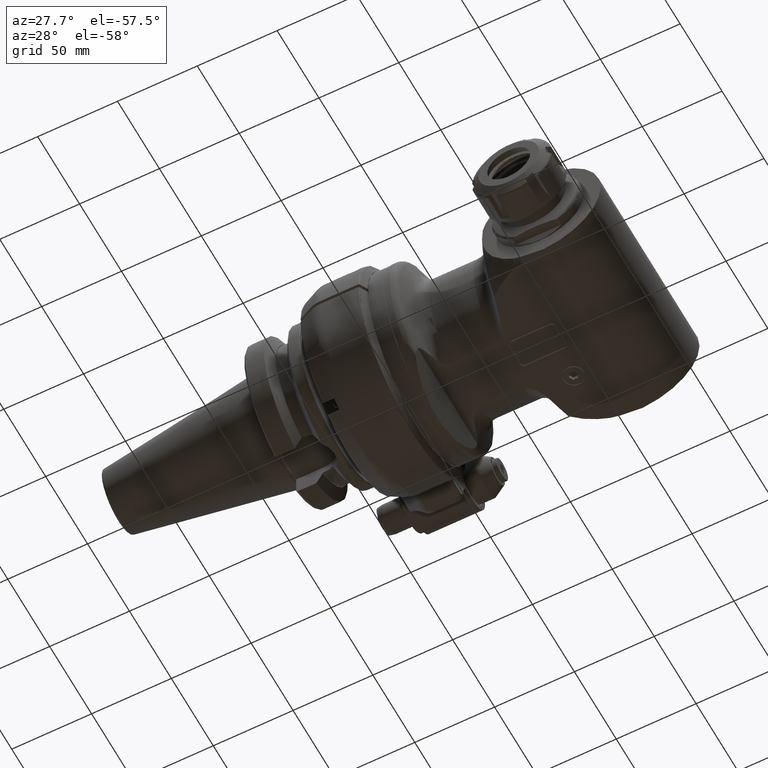
[diagram: clean part render]
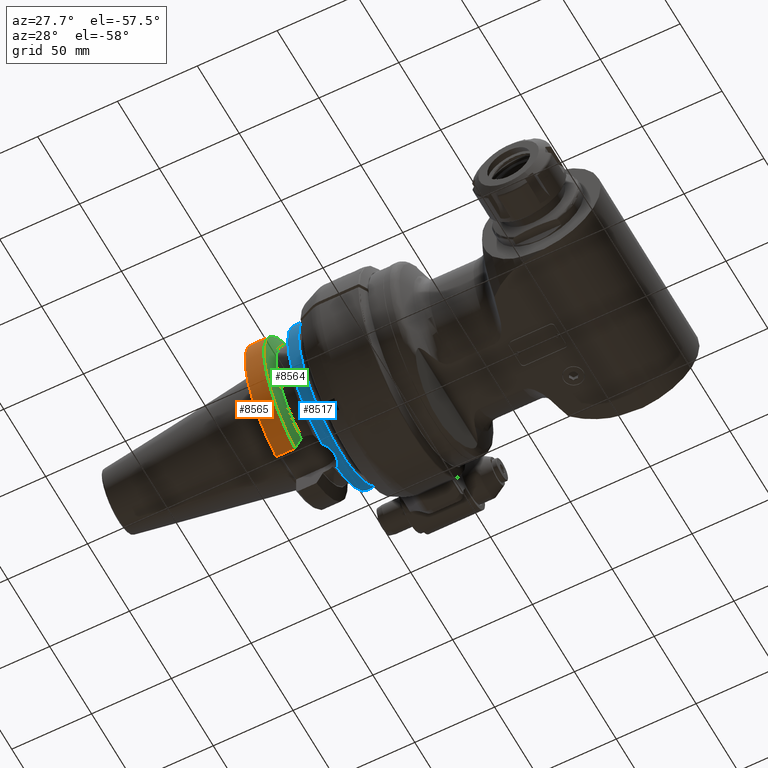
[diagram: same view with three faces highlighted in distinct colors, each labeled with its STEP entity id]
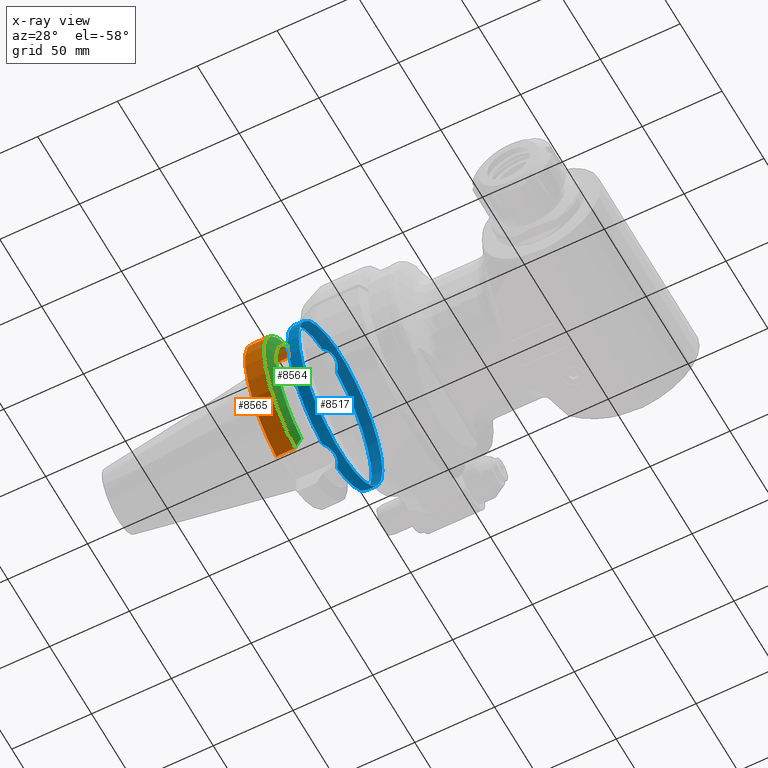
[diagram: x-ray of the same camera — body ghosted, the three highlighted faces saturated]
A machine part, auxiliary view with three faces highlighted in distinct colors.
The next image is the same camera in x-ray (body ghosted, the three faces saturated) — at least one of them is partly hidden behind the body in this view.
Their STEP definitions:

[orange] entity #8565 — the highlighted cylindrical surface (partial cylindrical patch) has radius 50 mm, axis along (1, 0, 0).
#350=CYLINDRICAL_SURFACE('',#9257,50.);
#668=CIRCLE('',#9256,50.);
#669=CIRCLE('',#9258,50.);
#1115=FACE_OUTER_BOUND('',#1649,.T.);
#1649=EDGE_LOOP('',(#6226,#6227,#6228,#6229));
#2361=LINE('',#13992,#2909);
#2390=LINE('',#14163,#2938);
#2909=VECTOR('',#10466,10.);
#2938=VECTOR('',#10607,10.);
#3537=VERTEX_POINT('',#13989);
#3538=VERTEX_POINT('',#13991);
#3582=VERTEX_POINT('',#14158);
#3583=VERTEX_POINT('',#14162);
#4498=EDGE_CURVE('',#3538,#3537,#2361,.T.);
#4565=EDGE_CURVE('',#3583,#3582,#2390,.T.);
#4570=EDGE_CURVE('',#3538,#3582,#668,.T.);
#4571=EDGE_CURVE('',#3583,#3537,#669,.T.);
#6226=ORIENTED_EDGE('',*,*,#4571,.F.);
#6227=ORIENTED_EDGE('',*,*,#4565,.T.);
#6228=ORIENTED_EDGE('',*,*,#4570,.F.);
#6229=ORIENTED_EDGE('',*,*,#4498,.T.);
#8565=ADVANCED_FACE('',(#1115),#350,.T.);
#9256=AXIS2_PLACEMENT_3D('',#14170,#10619,#10620);
#9257=AXIS2_PLACEMENT_3D('',#14171,#10621,#10622);
#9258=AXIS2_PLACEMENT_3D('',#14172,#10623,#10624);
#10466=DIRECTION('',(-1.,0.,0.));
#10607=DIRECTION('',(1.,0.,0.));
#10619=DIRECTION('center_axis',(1.,0.,0.));
#10620=DIRECTION('ref_axis',(0.,-0.257000000000005,0.966411403078419));
#10621=DIRECTION('center_axis',(1.,0.,0.));
#10622=DIRECTION('ref_axis',(0.,-1.,0.));
#10623=DIRECTION('center_axis',(-1.,0.,0.));
#10624=DIRECTION('ref_axis',(0.,-1.,0.));
#13989=CARTESIAN_POINT('',(-76.000000000001,-12.85,48.32057015392));
#13991=CARTESIAN_POINT('',(-64.3000686724345,-12.8499999998479,48.3205701542926));
#13992=CARTESIAN_POINT('',(-63.52764574358,-12.85,48.320570153921));
#14158=CARTESIAN_POINT('',(-64.3000686724346,-12.8499999998479,-48.3205701542926));
#14162=CARTESIAN_POINT('',(-76.00000000001,-12.85,-48.32057015392));
#14163=CARTESIAN_POINT('',(-63.52764574358,-12.85,-48.320570153921));
#14170=CARTESIAN_POINT('Origin',(-64.30006867191,0.,0.));
#14171=CARTESIAN_POINT('Origin',(-63.52764574358,0.,0.));
#14172=CARTESIAN_POINT('Origin',(-76.,0.,0.));

[blue] entity #8517 — the highlighted cylindrical surface (bore or boss wall) has radius 50 mm, axis along (1, 0, 0).
#212=B_SPLINE_CURVE_WITH_KNOTS('',3,(#13357,#13358,#13359,#13360,#13361,
#13362,#13363,#13364,#13365,#13366,#13367,#13368,#13369,#13370,#13371,#13372,
#13373,#13374,#13375,#13376,#13377,#13378,#13379,#13380,#13381,#13382,#13383,
#13384,#13385),.UNSPECIFIED.,.F.,.F.,(4,1,1,1,1,1,1,1,1,1,1,1,1,1,1,1,1,
1,1,1,1,1,1,1,1,1,4),(0.,0.01608847298446,0.05668560159406,0.09728477220944,
0.137884892262,0.178486680688,0.2186847770708,0.2588841269408,0.29908328876,
0.3392833254509,0.3794752329734,0.4196676536638,0.459859827133,0.5000521692269,
0.540244476811,0.5804366153278,0.6206290013041,0.6608208736297,0.7010208783887,
0.7412200077304,0.7814193246439,0.8216173874692,0.8622196224041,0.9028201882921,
0.9434198035432,0.9840173761406,1.),.UNSPECIFIED.);
#213=B_SPLINE_CURVE_WITH_KNOTS('',3,(#13389,#13390,#13391,#13392,#13393,
#13394,#13395,#13396,#13397,#13398,#13399,#13400,#13401,#13402,#13403,#13404,
#13405,#13406,#13407,#13408,#13409,#13410,#13411,#13412,#13413,#13414,#13415,
#13416,#13417),.UNSPECIFIED.,.F.,.F.,(4,1,1,1,1,1,1,1,1,1,1,1,1,1,1,1,1,
1,1,1,1,1,1,1,1,1,4),(0.,0.01608847298681,0.05668560159641,0.09728477221178,
0.1378848922644,0.1784866806903,0.2186847770728,0.2588841269425,0.2990832887614,
0.339283325452,0.3794752329743,0.4196676536643,0.4598598271333,0.5000521692269,
0.5402444768113,0.5804366153284,0.620629001305,0.6608208736309,0.7010208783902,
0.7412200077322,0.781419324646,0.8216173874715,0.8622196224064,0.9028201882944,
0.9434198035455,0.984017376143,1.),.UNSPECIFIED.);
#340=CYLINDRICAL_SURFACE('',#9161,50.);
#617=CIRCLE('',#9159,50.);
#618=CIRCLE('',#9160,50.);
#619=CIRCLE('',#9162,50.);
#620=CIRCLE('',#9163,50.);
#621=CIRCLE('',#9164,50.);
#1067=FACE_OUTER_BOUND('',#1596,.T.);
#1596=EDGE_LOOP('',(#5970,#5971,#5972,#5973,#5974,#5975,#5976,#5977,#5978));
#2337=LINE('',#13353,#2885);
#2885=VECTOR('',#10376,50.);
#3492=VERTEX_POINT('',#13346);
#3493=VERTEX_POINT('',#13347);
#3494=VERTEX_POINT('',#13352);
#3495=VERTEX_POINT('',#13354);
#3496=VERTEX_POINT('',#13356);
#3497=VERTEX_POINT('',#13386);
#3498=VERTEX_POINT('',#13388);
#4434=EDGE_CURVE('',#3492,#3493,#617,.T.);
#4436=EDGE_CURVE('',#3493,#3492,#618,.T.);
#4437=EDGE_CURVE('',#3492,#3494,#2337,.T.);
#4438=EDGE_CURVE('',#3495,#3494,#619,.T.);
#4439=EDGE_CURVE('',#3495,#3496,#212,.T.);
#4440=EDGE_CURVE('',#3497,#3496,#620,.T.);
#4441=EDGE_CURVE('',#3497,#3498,#213,.T.);
#4442=EDGE_CURVE('',#3494,#3498,#621,.T.);
#5970=ORIENTED_EDGE('',*,*,#4434,.F.);
#5971=ORIENTED_EDGE('',*,*,#4437,.T.);
#5972=ORIENTED_EDGE('',*,*,#4438,.F.);
#5973=ORIENTED_EDGE('',*,*,#4439,.T.);
#5974=ORIENTED_EDGE('',*,*,#4440,.F.);
#5975=ORIENTED_EDGE('',*,*,#4441,.T.);
#5976=ORIENTED_EDGE('',*,*,#4442,.F.);
#5977=ORIENTED_EDGE('',*,*,#4437,.F.);
#5978=ORIENTED_EDGE('',*,*,#4436,.F.);
#8517=ADVANCED_FACE('',(#1067),#340,.T.);
#9159=AXIS2_PLACEMENT_3D('',#13348,#10369,#10370);
#9160=AXIS2_PLACEMENT_3D('',#13350,#10372,#10373);
#9161=AXIS2_PLACEMENT_3D('',#13351,#10374,#10375);
#9162=AXIS2_PLACEMENT_3D('',#13355,#10377,#10378);
#9163=AXIS2_PLACEMENT_3D('',#13387,#10379,#10380);
#9164=AXIS2_PLACEMENT_3D('',#13418,#10381,#10382);
#10369=DIRECTION('center_axis',(1.,0.,0.));
#10370=DIRECTION('ref_axis',(0.,1.,0.));
#10372=DIRECTION('center_axis',(1.,0.,0.));
#10373=DIRECTION('ref_axis',(0.,1.,0.));
#10374=DIRECTION('center_axis',(1.,0.,0.));
#10375=DIRECTION('ref_axis',(0.,-1.,0.));
#10376=DIRECTION('',(-1.,0.,0.));
#10377=DIRECTION('center_axis',(-1.,0.,0.));
#10378=DIRECTION('ref_axis',(0.,0.175277615546507,0.984519048819438));
#10379=DIRECTION('center_axis',(-1.,0.,0.));
#10380=DIRECTION('ref_axis',(0.,-0.175277615546507,-0.984519048819438));
#10381=DIRECTION('center_axis',(-1.,0.,0.));
#10382=DIRECTION('ref_axis',(0.,0.175277615546507,0.984519048819438));
#13346=CARTESIAN_POINT('',(-42.5,50.,0.));
#13347=CARTESIAN_POINT('',(-42.5,-50.,6.12323399573677E-15));
#13348=CARTESIAN_POINT('Origin',(-42.5,0.,0.));
#13350=CARTESIAN_POINT('Origin',(-42.5,0.,0.));
#13351=CARTESIAN_POINT('Origin',(-63.52764574358,0.,0.));
#13352=CARTESIAN_POINT('',(-49.29993132809,50.,6.12323399573677E-15));
#13353=CARTESIAN_POINT('',(-63.52764574358,50.,6.12323399573677E-15));
#13354=CARTESIAN_POINT('',(-49.2999312534767,8.76388047451264,49.2259524796439));
#13355=CARTESIAN_POINT('Origin',(-49.29993132809,0.,0.));
#13356=CARTESIAN_POINT('',(-49.2999312534046,-8.76388047332935,49.2259524799685));
#13357=CARTESIAN_POINT('Ctrl Pts',(-49.29993108476,8.763880462982,49.22595248551));
#13358=CARTESIAN_POINT('Ctrl Pts',(-49.23066876251,8.688101895147,49.2394436344));
#13359=CARTESIAN_POINT('Ctrl Pts',(-48.98978112896,8.418183089909,49.28686227441));
#13360=CARTESIAN_POINT('Ctrl Pts',(-48.59586433665,7.937768673675,49.36721215176));
#13361=CARTESIAN_POINT('Ctrl Pts',(-48.13933645114,7.307462353646,49.46455543313));
#13362=CARTESIAN_POINT('Ctrl Pts',(-47.72105937799,6.650388804582,49.55728508657));
#13363=CARTESIAN_POINT('Ctrl Pts',(-47.34382759077,5.97102084028,49.64380881806));
#13364=CARTESIAN_POINT('Ctrl Pts',(-47.00859956542,5.27193633524,49.7229835189));
#13365=CARTESIAN_POINT('Ctrl Pts',(-46.71619452094,4.555778270864,49.79379041329));
#13366=CARTESIAN_POINT('Ctrl Pts',(-46.46665857818,3.822701630978,49.85549997319));
#13367=CARTESIAN_POINT('Ctrl Pts',(-46.26103711893,3.075372857829,49.90723467758));
#13368=CARTESIAN_POINT('Ctrl Pts',(-46.10019160894,2.31650521944,49.94825935928));
#13369=CARTESIAN_POINT('Ctrl Pts',(-45.98481283174,1.548915063318,49.97798717727));
#13370=CARTESIAN_POINT('Ctrl Pts',(-45.91540145223,0.7754315155485,49.99599172146));
#13371=CARTESIAN_POINT('Ctrl Pts',(-45.89226957197,-0.001008157507625,50.00201195099));
#13372=CARTESIAN_POINT('Ctrl Pts',(-45.91552178374,-0.7774437570915,49.9959604306));
#13373=CARTESIAN_POINT('Ctrl Pts',(-45.98505285844,-1.550915131448,49.9779250739));
#13374=CARTESIAN_POINT('Ctrl Pts',(-46.10055017787,-2.318485567507,49.94816736259));
#13375=CARTESIAN_POINT('Ctrl Pts',(-46.2615125871,-3.077326134976,49.90711412894));
#13376=CARTESIAN_POINT('Ctrl Pts',(-46.46724883744,-3.824620706206,49.85535261293));
#13377=CARTESIAN_POINT('Ctrl Pts',(-46.7168970431,-4.557656278248,49.79361834804));
#13378=CARTESIAN_POINT('Ctrl Pts',(-47.00941142813,-5.273766683976,49.72278918947));
#13379=CARTESIAN_POINT('Ctrl Pts',(-47.34474722772,-5.97279984841,49.64359457594));
#13380=CARTESIAN_POINT('Ctrl Pts',(-47.72208545774,-6.652112729231,49.55705347043));
#13381=CARTESIAN_POINT('Ctrl Pts',(-48.14046784964,-7.309127295038,49.46430917945));
#13382=CARTESIAN_POINT('Ctrl Pts',(-48.59709783939,-7.939368512463,49.36695460897));
#13383=CARTESIAN_POINT('Ctrl Pts',(-48.99066390156,-8.419202566853,49.2866861327));
#13384=CARTESIAN_POINT('Ctrl Pts',(-49.23112443611,-8.688600437389,49.23935487731));
#13385=CARTESIAN_POINT('Ctrl Pts',(-49.29993108469,-8.763880461773,49.22595248581));
#13386=CARTESIAN_POINT('',(-49.299931253477,-8.76388047451255,-49.2259524796433));
#13387=CARTESIAN_POINT('Origin',(-49.29993132809,0.,0.));
#13388=CARTESIAN_POINT('',(-49.2999312534056,8.76388047332906,-49.2259524799669));
#13389=CARTESIAN_POINT('Ctrl Pts',(-49.29993108476,-8.763880462982,-49.22595248551));
#13390=CARTESIAN_POINT('Ctrl Pts',(-49.2306687625,-8.688101895135,-49.23944363441));
#13391=CARTESIAN_POINT('Ctrl Pts',(-48.98978112894,-8.418183089887,-49.28686227441));
#13392=CARTESIAN_POINT('Ctrl Pts',(-48.59586433663,-7.93776867364,-49.36721215176));
#13393=CARTESIAN_POINT('Ctrl Pts',(-48.13933645111,-7.307462353609,-49.46455543314));
#13394=CARTESIAN_POINT('Ctrl Pts',(-47.72105937797,-6.650388804544,-49.55728508658));
#13395=CARTESIAN_POINT('Ctrl Pts',(-47.34382759075,-5.971020840242,-49.64380881806));
#13396=CARTESIAN_POINT('Ctrl Pts',(-47.0085995654,-5.271936335205,-49.7229835189));
#13397=CARTESIAN_POINT('Ctrl Pts',(-46.71619452092,-4.555778270833,-49.79379041329));
#13398=CARTESIAN_POINT('Ctrl Pts',(-46.46665857817,-3.822701630951,-49.85549997319));
#13399=CARTESIAN_POINT('Ctrl Pts',(-46.26103711892,-3.075372857807,-49.90723467758));
#13400=CARTESIAN_POINT('Ctrl Pts',(-46.10019160894,-2.316505219424,-49.94825935928));
#13401=CARTESIAN_POINT('Ctrl Pts',(-45.98481283174,-1.548915063307,-49.97798717727));
#13402=CARTESIAN_POINT('Ctrl Pts',(-45.91540145223,-0.7754315155427,-49.99599172146));
#13403=CARTESIAN_POINT('Ctrl Pts',(-45.89226957197,0.001008157511473,-50.00201195099));
#13404=CARTESIAN_POINT('Ctrl Pts',(-45.91552178374,0.7774437570972,-49.9959604306));
#13405=CARTESIAN_POINT('Ctrl Pts',(-45.98505285844,1.550915131459,-49.9779250739));
#13406=CARTESIAN_POINT('Ctrl Pts',(-46.10055017787,2.318485567524,-49.94816736259));
#13407=CARTESIAN_POINT('Ctrl Pts',(-46.2615125871,3.077326134998,-49.90711412894));
#13408=CARTESIAN_POINT('Ctrl Pts',(-46.46724883745,3.824620706233,-49.85535261292));
#13409=CARTESIAN_POINT('Ctrl Pts',(-46.71689704311,4.557656278279,-49.79361834804));
#13410=CARTESIAN_POINT('Ctrl Pts',(-47.00941142815,5.273766684012,-49.72278918946));
#13411=CARTESIAN_POINT('Ctrl Pts',(-47.34474722774,5.972799848448,-49.64359457594));
#13412=CARTESIAN_POINT('Ctrl Pts',(-47.72208545776,6.652112729269,-49.55705347043));
#13413=CARTESIAN_POINT('Ctrl Pts',(-48.14046784966,7.309127295076,-49.46430917944));
#13414=CARTESIAN_POINT('Ctrl Pts',(-48.59709783942,7.939368512499,-49.36695460897));
#13415=CARTESIAN_POINT('Ctrl Pts',(-48.99066390158,8.419202566875,-49.2866861327));
#13416=CARTESIAN_POINT('Ctrl Pts',(-49.23112443612,8.6886004374,-49.23935487731));
#13417=CARTESIAN_POINT('Ctrl Pts',(-49.29993108469,8.763880461773,-49.22595248581));
#13418=CARTESIAN_POINT('Origin',(-49.29993132809,0.,0.));

[green] entity #8564 — the highlighted conical surface has half-angle 60 deg.
#65=CONICAL_SURFACE('',#9255,46.53583891325,1.0471975511966);
#666=CIRCLE('',#9253,43.07167782649);
#668=CIRCLE('',#9256,50.);
#1114=FACE_OUTER_BOUND('',#1648,.T.);
#1648=EDGE_LOOP('',(#6222,#6223,#6224,#6225));
#2107=(
BOUNDED_CURVE()
B_SPLINE_CURVE(2,(#13994,#13995,#13996),.UNSPECIFIED.,.F.,.F.)
B_SPLINE_CURVE_WITH_KNOTS((3,3),(-1.64312031504749,-0.673321392989843),
 .UNSPECIFIED.)
CURVE()
GEOMETRIC_REPRESENTATION_ITEM()
RATIONAL_B_SPLINE_CURVE((1.02651656950144,1.02387797600821,1.01511683721983))
REPRESENTATION_ITEM('')
);
#2115=(
BOUNDED_CURVE()
B_SPLINE_CURVE(2,(#14159,#14160,#14161),.UNSPECIFIED.,.F.,.F.)
B_SPLINE_CURVE_WITH_KNOTS((3,3),(-3.44881509483104,-2.47901617277341),
 .UNSPECIFIED.)
CURVE()
GEOMETRIC_REPRESENTATION_ITEM()
RATIONAL_B_SPLINE_CURVE((1.01511683721982,1.0238779760082,1.02651656950142))
REPRESENTATION_ITEM('')
);
#3538=VERTEX_POINT('',#13991);
#3539=VERTEX_POINT('',#13993);
#3581=VERTEX_POINT('',#14156);
#3582=VERTEX_POINT('',#14158);
#4499=EDGE_CURVE('',#3538,#3539,#2107,.T.);
#4564=EDGE_CURVE('',#3581,#3582,#2115,.T.);
#4568=EDGE_CURVE('',#3539,#3581,#666,.T.);
#4570=EDGE_CURVE('',#3538,#3582,#668,.T.);
#6222=ORIENTED_EDGE('',*,*,#4568,.F.);
#6223=ORIENTED_EDGE('',*,*,#4499,.F.);
#6224=ORIENTED_EDGE('',*,*,#4570,.T.);
#6225=ORIENTED_EDGE('',*,*,#4564,.F.);
#8564=ADVANCED_FACE('',(#1114),#65,.T.);
#9253=AXIS2_PLACEMENT_3D('',#14167,#10613,#10614);
#9255=AXIS2_PLACEMENT_3D('',#14169,#10617,#10618);
#9256=AXIS2_PLACEMENT_3D('',#14170,#10619,#10620);
#10613=DIRECTION('center_axis',(1.,0.,0.));
#10614=DIRECTION('ref_axis',(0.,-0.298339898709412,0.954459692620939));
#10617=DIRECTION('center_axis',(-1.,0.,0.));
#10618=DIRECTION('ref_axis',(0.,-1.,-1.22464679914735E-16));
#10619=DIRECTION('center_axis',(1.,0.,0.));
#10620=DIRECTION('ref_axis',(0.,-0.257000000000005,0.966411403078419));
#13991=CARTESIAN_POINT('',(-64.3000686724345,-12.8499999998479,48.3205701542926));
#13993=CARTESIAN_POINT('',(-60.3000000016646,-12.8499999981967,41.110180386017));
#13994=CARTESIAN_POINT('Ctrl Pts',(-64.3000686721861,-12.85,48.3205701544313));
#13995=CARTESIAN_POINT('Ctrl Pts',(-62.1387807754865,-12.85,44.4470019877682));
#13996=CARTESIAN_POINT('Ctrl Pts',(-60.3000000033754,-12.85,41.1101803850778));
#14156=CARTESIAN_POINT('',(-60.3000000016646,-12.8499999981966,-41.1101803860172));
#14158=CARTESIAN_POINT('',(-64.3000686724346,-12.8499999998479,-48.3205701542926));
#14159=CARTESIAN_POINT('Ctrl Pts',(-60.3000000033754,-12.85,-41.1101803850779));
#14160=CARTESIAN_POINT('Ctrl Pts',(-62.1387807754865,-12.85,-44.4470019877683));
#14161=CARTESIAN_POINT('Ctrl Pts',(-64.3000686721861,-12.85,-48.3205701544313));
#14167=CARTESIAN_POINT('Origin',(-60.3,0.,0.));
#14169=CARTESIAN_POINT('Origin',(-62.30003433595,0.,0.));
#14170=CARTESIAN_POINT('Origin',(-64.30006867191,0.,0.));